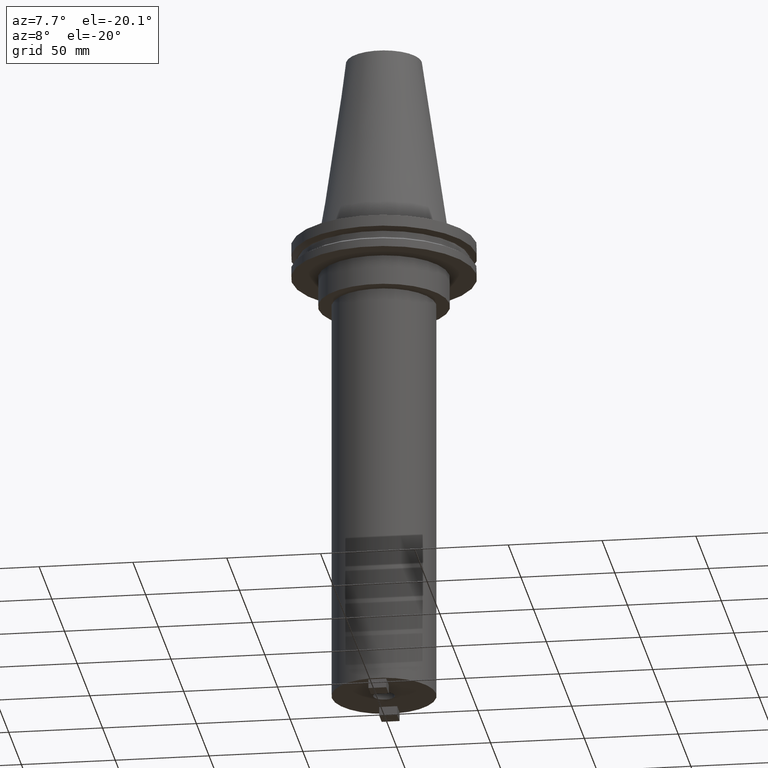
[diagram: clean part render]
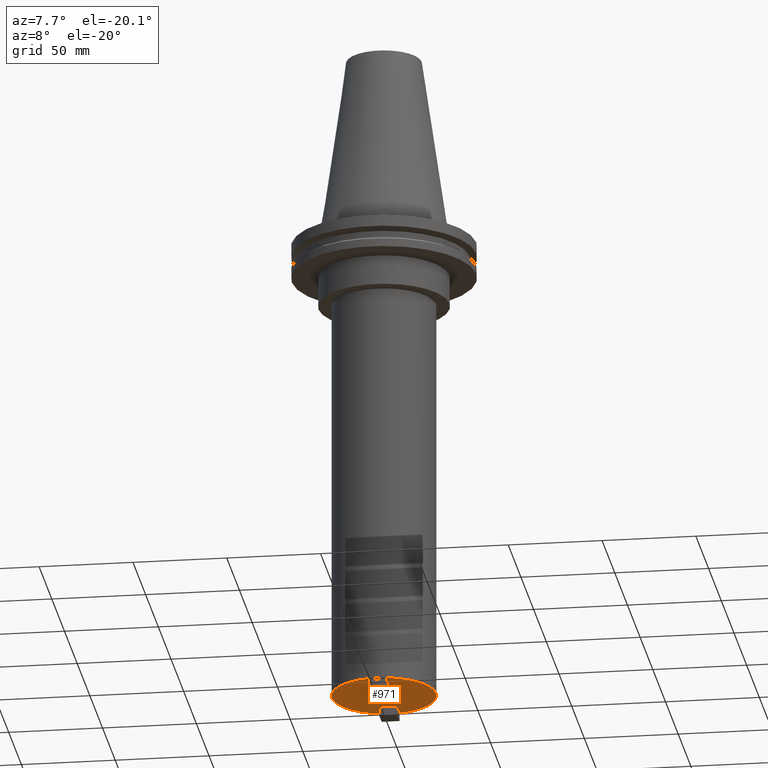
[diagram: same view with one face highlighted and labeled with its STEP entity id]
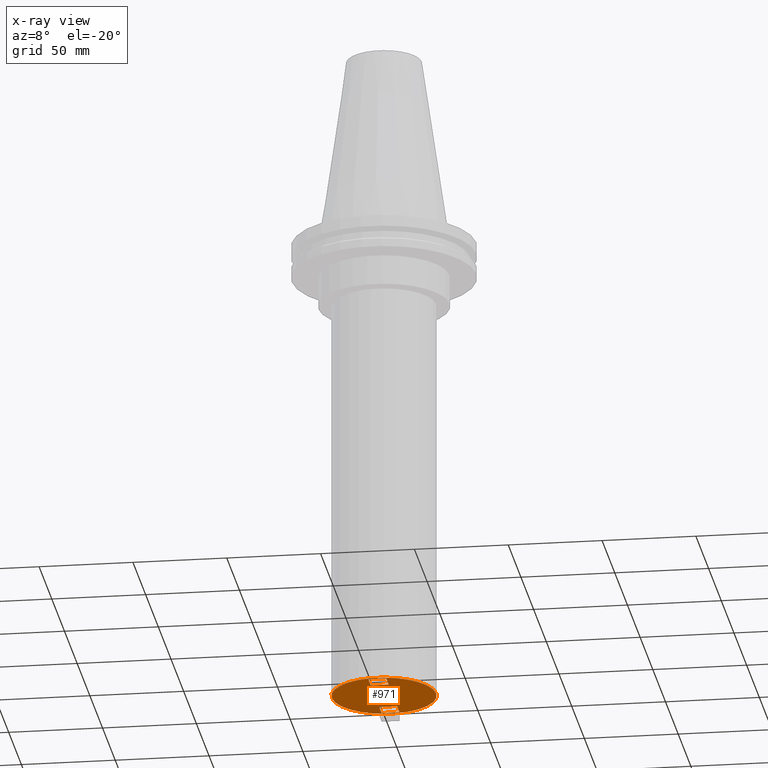
[diagram: x-ray of the same camera — body ghosted, the highlighted face saturated]
A machine part, auxiliary view. The second image highlights one B-rep face of the part: STEP entity #971.
The next image is the same camera in x-ray: the body ghosted, the highlighted face saturated — about 0% of this face is hidden behind the body in this view.
In plain terms, the highlighted planar face has unit normal (0, -0, 1).
Its self-contained STEP definition (entity closure, byte-faithful):
#32 = EDGE_LOOP ( 'NONE', ( #420, #888, #116, #649 ) ) ;
#33 = EDGE_CURVE ( 'NONE', #211, #860, #1049, .T. ) ;
#46 = DIRECTION ( 'NONE',  ( -0.000000000000000000, -0.000000000000000000, 1.000000000000000000 ) ) ;
#52 = DIRECTION ( 'NONE',  ( -0.000000000000000000, -0.000000000000000000, 1.000000000000000000 ) ) ;
#55 = PLANE ( 'NONE',  #110 ) ;
#57 = ORIENTED_EDGE ( 'NONE', *, *, #874, .T. ) ;
#67 = CARTESIAN_POINT ( 'NONE',  ( 0.000000000000000000, 27.80000000000000071, -254.0000000000000000 ) ) ;
#70 = ORIENTED_EDGE ( 'NONE', *, *, #892, .F. ) ;
#75 = VECTOR ( 'NONE', #941, 1000.000000000000000 ) ;
#92 = CARTESIAN_POINT ( 'NONE',  ( -4.762500000000000178, 16.67750000000000554, -254.0000000000000000 ) ) ;
#96 = CARTESIAN_POINT ( 'NONE',  ( -27.80000000000000071, 3.404518101629642167E-15, -254.0000000000000000 ) ) ;
#110 = AXIS2_PLACEMENT_3D ( 'NONE', #67, #320, #1078 ) ;
#116 = ORIENTED_EDGE ( 'NONE', *, *, #518, .F. ) ;
#117 = CARTESIAN_POINT ( 'NONE',  ( 4.762500000000000178, 26.20250000000000412, -254.0000000000000000 ) ) ;
#120 = AXIS2_PLACEMENT_3D ( 'NONE', #370, #46, #128 ) ;
#121 = CARTESIAN_POINT ( 'NONE',  ( -4.762500000000000178, -26.20249999999999702, -254.0000000000000000 ) ) ;
#128 = DIRECTION ( 'NONE',  ( 1.000000000000000000, 0.000000000000000000, 0.000000000000000000 ) ) ;
#160 = LINE ( 'NONE', #407, #75 ) ;
#203 = EDGE_CURVE ( 'NONE', #541, #915, #249, .T. ) ;
#211 = VERTEX_POINT ( 'NONE', #916 ) ;
#230 = LINE ( 'NONE', #581, #240 ) ;
#240 = VECTOR ( 'NONE', #921, 1000.000000000000000 ) ;
#249 = LINE ( 'NONE', #1011, #454 ) ;
#290 = DIRECTION ( 'NONE',  ( 1.000000000000000000, -0.000000000000000000, -0.000000000000000000 ) ) ;
#291 = EDGE_CURVE ( 'NONE', #1071, #318, #410, .T. ) ;
#292 = CARTESIAN_POINT ( 'NONE',  ( 4.762500000000000178, -26.20249999999999702, -254.0000000000000000 ) ) ;
#315 = DIRECTION ( 'NONE',  ( -0.000000000000000000, -0.000000000000000000, 1.000000000000000000 ) ) ;
#318 = VERTEX_POINT ( 'NONE', #92 ) ;
#319 = CARTESIAN_POINT ( 'NONE',  ( 4.762500000000000178, 16.67750000000000554, -254.0000000000000000 ) ) ;
#320 = DIRECTION ( 'NONE',  ( 0.000000000000000000, -0.000000000000000000, 1.000000000000000000 ) ) ;
#324 = FACE_OUTER_BOUND ( 'NONE', #474, .T. ) ;
#370 = CARTESIAN_POINT ( 'NONE',  ( 0.000000000000000000, 0.000000000000000000, -254.0000000000000000 ) ) ;
#371 = CARTESIAN_POINT ( 'NONE',  ( 4.762500000000000178, -26.20249999999999346, -254.0000000000000000 ) ) ;
#383 = DIRECTION ( 'NONE',  ( 1.000000000000000000, 0.000000000000000000, 0.000000000000000000 ) ) ;
#389 = ORIENTED_EDGE ( 'NONE', *, *, #833, .F. ) ;
#407 = CARTESIAN_POINT ( 'NONE',  ( -4.762500000000000178, 26.20250000000000412, -254.0000000000000000 ) ) ;
#409 = VERTEX_POINT ( 'NONE', #670 ) ;
#410 = LINE ( 'NONE', #319, #792 ) ;
#412 = ORIENTED_EDGE ( 'NONE', *, *, #691, .F. ) ;
#417 = VECTOR ( 'NONE', #889, 1000.000000000000000 ) ;
#420 = ORIENTED_EDGE ( 'NONE', *, *, #854, .F. ) ;
#422 = CARTESIAN_POINT ( 'NONE',  ( 27.80000000000000071, 0.000000000000000000, -254.0000000000000000 ) ) ;
#425 = EDGE_CURVE ( 'NONE', #559, #1071, #230, .T. ) ;
#435 = VERTEX_POINT ( 'NONE', #422 ) ;
#444 = CARTESIAN_POINT ( 'NONE',  ( 4.762500000000000178, 16.67750000000000554, -254.0000000000000000 ) ) ;
#454 = VECTOR ( 'NONE', #765, 1000.000000000000000 ) ;
#458 = ORIENTED_EDGE ( 'NONE', *, *, #617, .F. ) ;
#468 = VECTOR ( 'NONE', #980, 1000.000000000000000 ) ;
#474 = EDGE_LOOP ( 'NONE', ( #458, #70 ) ) ;
#477 = LINE ( 'NONE', #292, #896 ) ;
#502 = CARTESIAN_POINT ( 'NONE',  ( 4.762500000000000178, 26.20250000000000412, -254.0000000000000000 ) ) ;
#505 = DIRECTION ( 'NONE',  ( -1.000000000000000000, 0.000000000000000000, 0.000000000000000000 ) ) ;
#518 = EDGE_CURVE ( 'NONE', #555, #541, #477, .T. ) ;
#524 = VERTEX_POINT ( 'NONE', #881 ) ;
#541 = VERTEX_POINT ( 'NONE', #371 ) ;
#545 = DIRECTION ( 'NONE',  ( -0.000000000000000000, -1.000000000000000000, -0.000000000000000000 ) ) ;
#555 = VERTEX_POINT ( 'NONE', #669 ) ;
#557 = AXIS2_PLACEMENT_3D ( 'NONE', #900, #820, #975 ) ;
#559 = VERTEX_POINT ( 'NONE', #502 ) ;
#565 = FACE_BOUND ( 'NONE', #808, .T. ) ;
#581 = CARTESIAN_POINT ( 'NONE',  ( 4.762500000000000178, 26.20250000000000412, -254.0000000000000000 ) ) ;
#583 = CIRCLE ( 'NONE', #958, 27.80000000000000071 ) ;
#603 = AXIS2_PLACEMENT_3D ( 'NONE', #969, #52, #383 ) ;
#617 = EDGE_CURVE ( 'NONE', #435, #800, #583, .T. ) ;
#648 = ORIENTED_EDGE ( 'NONE', *, *, #425, .F. ) ;
#649 = ORIENTED_EDGE ( 'NONE', *, *, #1027, .F. ) ;
#650 = CIRCLE ( 'NONE', #120, 5.755000000000006111 ) ;
#657 = DIRECTION ( 'NONE',  ( 1.000000000000000000, 0.000000000000000000, 0.000000000000000000 ) ) ;
#669 = CARTESIAN_POINT ( 'NONE',  ( 4.762500000000000178, -16.67750000000000199, -254.0000000000000000 ) ) ;
#670 = CARTESIAN_POINT ( 'NONE',  ( -4.762500000000000178, 26.20250000000000412, -254.0000000000000000 ) ) ;
#675 = CIRCLE ( 'NONE', #603, 27.80000000000000071 ) ;
#691 = EDGE_CURVE ( 'NONE', #318, #409, #160, .T. ) ;
#706 = CARTESIAN_POINT ( 'NONE',  ( 5.755000000000006111, 0.000000000000000000, -254.0000000000000000 ) ) ;
#728 = LINE ( 'NONE', #999, #468 ) ;
#761 = EDGE_LOOP ( 'NONE', ( #57, #1066 ) ) ;
#765 = DIRECTION ( 'NONE',  ( -1.000000000000000000, 0.000000000000000000, 0.000000000000000000 ) ) ;
#792 = VECTOR ( 'NONE', #505, 1000.000000000000000 ) ;
#800 = VERTEX_POINT ( 'NONE', #96 ) ;
#808 = EDGE_LOOP ( 'NONE', ( #412, #979, #648, #389 ) ) ;
#810 = VECTOR ( 'NONE', #290, 1000.000000000000000 ) ;
#818 = FACE_BOUND ( 'NONE', #761, .T. ) ;
#820 = DIRECTION ( 'NONE',  ( -0.000000000000000000, -0.000000000000000000, 1.000000000000000000 ) ) ;
#833 = EDGE_CURVE ( 'NONE', #409, #559, #1037, .T. ) ;
#854 = EDGE_CURVE ( 'NONE', #915, #524, #875, .T. ) ;
#860 = VERTEX_POINT ( 'NONE', #706 ) ;
#874 = EDGE_CURVE ( 'NONE', #860, #211, #650, .T. ) ;
#875 = LINE ( 'NONE', #121, #417 ) ;
#878 = CARTESIAN_POINT ( 'NONE',  ( -4.762500000000000178, -26.20249999999999702, -254.0000000000000000 ) ) ;
#881 = CARTESIAN_POINT ( 'NONE',  ( -4.762500000000000178, -16.67750000000000199, -254.0000000000000000 ) ) ;
#888 = ORIENTED_EDGE ( 'NONE', *, *, #203, .F. ) ;
#889 = DIRECTION ( 'NONE',  ( 0.000000000000000000, 1.000000000000000000, 0.000000000000000000 ) ) ;
#892 = EDGE_CURVE ( 'NONE', #800, #435, #675, .T. ) ;
#896 = VECTOR ( 'NONE', #545, 1000.000000000000000 ) ;
#900 = CARTESIAN_POINT ( 'NONE',  ( 0.000000000000000000, 0.000000000000000000, -254.0000000000000000 ) ) ;
#915 = VERTEX_POINT ( 'NONE', #878 ) ;
#916 = CARTESIAN_POINT ( 'NONE',  ( -5.755000000000006111, 7.047842329093025644E-16, -254.0000000000000000 ) ) ;
#921 = DIRECTION ( 'NONE',  ( 0.000000000000000000, -1.000000000000000000, 0.000000000000000000 ) ) ;
#941 = DIRECTION ( 'NONE',  ( -0.000000000000000000, 1.000000000000000000, -0.000000000000000000 ) ) ;
#958 = AXIS2_PLACEMENT_3D ( 'NONE', #1002, #315, #657 ) ;
#969 = CARTESIAN_POINT ( 'NONE',  ( 0.000000000000000000, 0.000000000000000000, -254.0000000000000000 ) ) ;
#971 = ADVANCED_FACE ( 'NONE', ( #565, #324, #818, #1060 ), #55, .F. ) ;
#975 = DIRECTION ( 'NONE',  ( 1.000000000000000000, 0.000000000000000000, 0.000000000000000000 ) ) ;
#979 = ORIENTED_EDGE ( 'NONE', *, *, #291, .F. ) ;
#980 = DIRECTION ( 'NONE',  ( 1.000000000000000000, -0.000000000000000000, -0.000000000000000000 ) ) ;
#999 = CARTESIAN_POINT ( 'NONE',  ( 4.762500000000000178, -16.67749999999999844, -254.0000000000000000 ) ) ;
#1002 = CARTESIAN_POINT ( 'NONE',  ( 0.000000000000000000, 0.000000000000000000, -254.0000000000000000 ) ) ;
#1011 = CARTESIAN_POINT ( 'NONE',  ( 4.762500000000000178, -26.20249999999999702, -254.0000000000000000 ) ) ;
#1027 = EDGE_CURVE ( 'NONE', #524, #555, #728, .T. ) ;
#1037 = LINE ( 'NONE', #117, #810 ) ;
#1049 = CIRCLE ( 'NONE', #557, 5.755000000000006111 ) ;
#1060 = FACE_BOUND ( 'NONE', #32, .T. ) ;
#1066 = ORIENTED_EDGE ( 'NONE', *, *, #33, .T. ) ;
#1071 = VERTEX_POINT ( 'NONE', #444 ) ;
#1078 = DIRECTION ( 'NONE',  ( 1.000000000000000000, 0.000000000000000000, 0.000000000000000000 ) ) ;